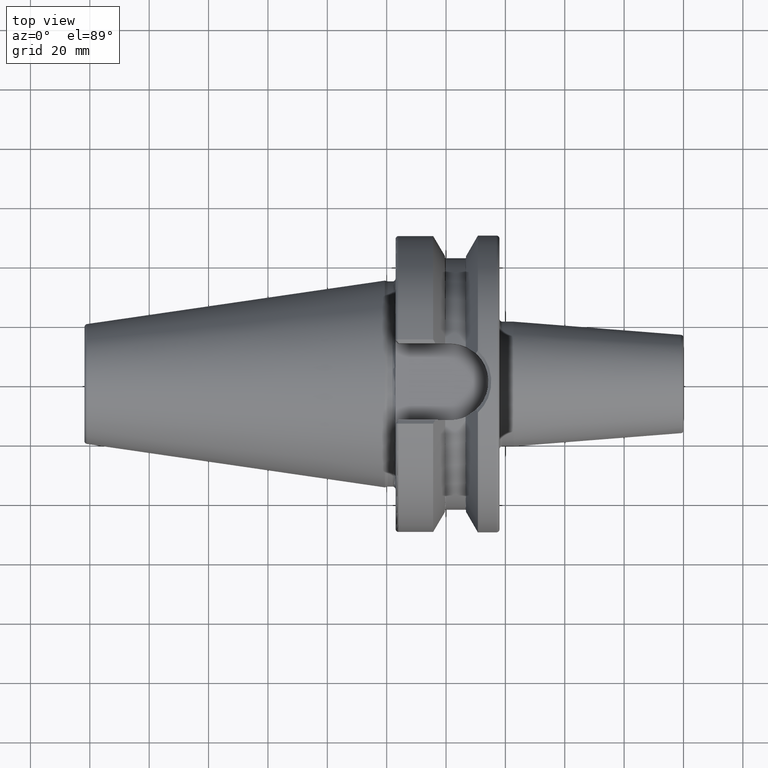
[diagram: clean part render]
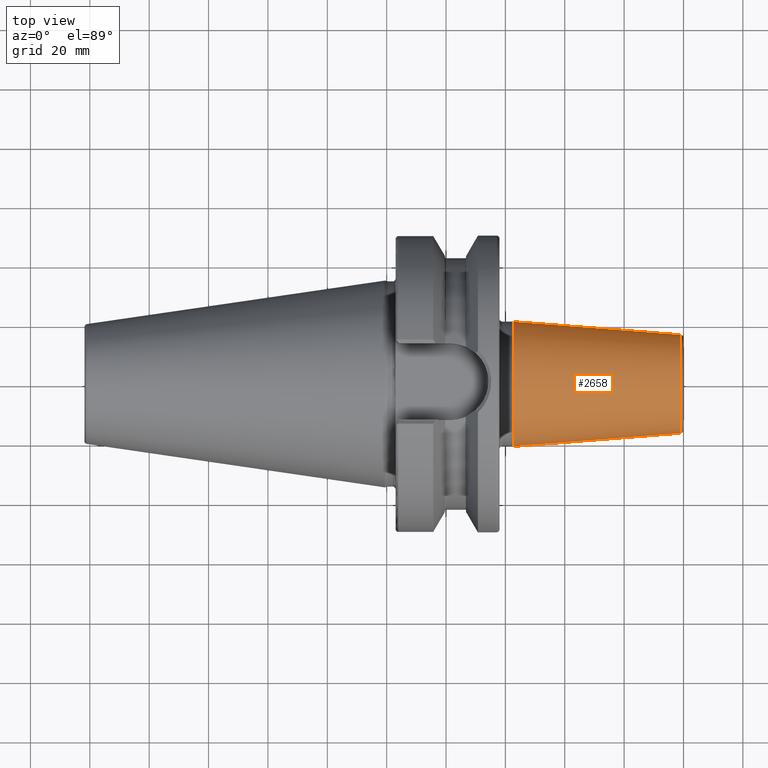
[diagram: same view with one face highlighted and labeled with its STEP entity id]
A machine part, top view. The second image highlights one B-rep face of the part: STEP entity #2658.
In plain terms, the highlighted conical surface has half-angle 4.5 deg.
Its self-contained STEP definition (entity closure, byte-faithful):
#859=CARTESIAN_POINT('',(4.282207868721E1,0.E0,0.E0));
#860=DIRECTION('',(1.E0,0.E0,0.E0));
#861=DIRECTION('',(0.E0,1.E0,0.E0));
#862=AXIS2_PLACEMENT_3D('',#859,#860,#861);
#887=DIRECTION('',(-9.969173337331E-1,7.845909572785E-2,5.099760097374E-14));
#888=VECTOR('',#887,5.643033630266E1);
#889=CARTESIAN_POINT('',(9.907845909573E1,1.657252684207E1,
-2.875240015299E-12));
#890=LINE('',#889,#888);
#891=DIRECTION('',(-9.969173337331E-1,-7.845909572785E-2,-5.098860958131E-14));
#892=VECTOR('',#891,5.643033630266E1);
#893=CARTESIAN_POINT('',(9.907845909573E1,-1.657252684207E1,2.874732628E-12));
#894=LINE('',#893,#892);
#905=CARTESIAN_POINT('',(9.907845909573E1,0.E0,0.E0));
#906=DIRECTION('',(-1.E0,0.E0,0.E0));
#907=DIRECTION('',(0.E0,-1.E0,0.E0));
#908=AXIS2_PLACEMENT_3D('',#905,#906,#907);
#1391=CARTESIAN_POINT('',(4.282207868721E1,2.1E1,0.E0));
#1392=CARTESIAN_POINT('',(4.282207868721E1,-2.1E1,0.E0));
#1393=VERTEX_POINT('',#1391);
#1394=VERTEX_POINT('',#1392);
#1411=CARTESIAN_POINT('',(9.907845909573E1,1.657252684207E1,0.E0));
#1412=CARTESIAN_POINT('',(9.907845909573E1,-1.657252684207E1,0.E0));
#1413=VERTEX_POINT('',#1411);
#1414=VERTEX_POINT('',#1412);
#2647=CARTESIAN_POINT('',(7.095026889147E1,0.E0,0.E0));
#2648=DIRECTION('',(-1.E0,0.E0,0.E0));
#2649=DIRECTION('',(0.E0,1.E0,0.E0));
#2650=AXIS2_PLACEMENT_3D('',#2647,#2648,#2649);
#2651=CONICAL_SURFACE('',#2650,1.878626342104E1,4.5E0);
#2652=ORIENTED_EDGE('',*,*,#2638,.F.);
#2653=ORIENTED_EDGE('',*,*,#2613,.T.);
#2654=ORIENTED_EDGE('',*,*,#2583,.F.);
#2655=ORIENTED_EDGE('',*,*,#2610,.F.);
#2656=EDGE_LOOP('',(#2652,#2653,#2654,#2655));
#2657=FACE_OUTER_BOUND('',#2656,.F.);
#2658=ADVANCED_FACE('',(#2657),#2651,.T.);
#863=CIRCLE('',#862,2.1E1);
#909=CIRCLE('',#908,1.657252684207E1);
#2583=EDGE_CURVE('',#1393,#1394,#863,.T.);
#2610=EDGE_CURVE('',#1413,#1393,#890,.T.);
#2613=EDGE_CURVE('',#1414,#1394,#894,.T.);
#2638=EDGE_CURVE('',#1414,#1413,#909,.T.);